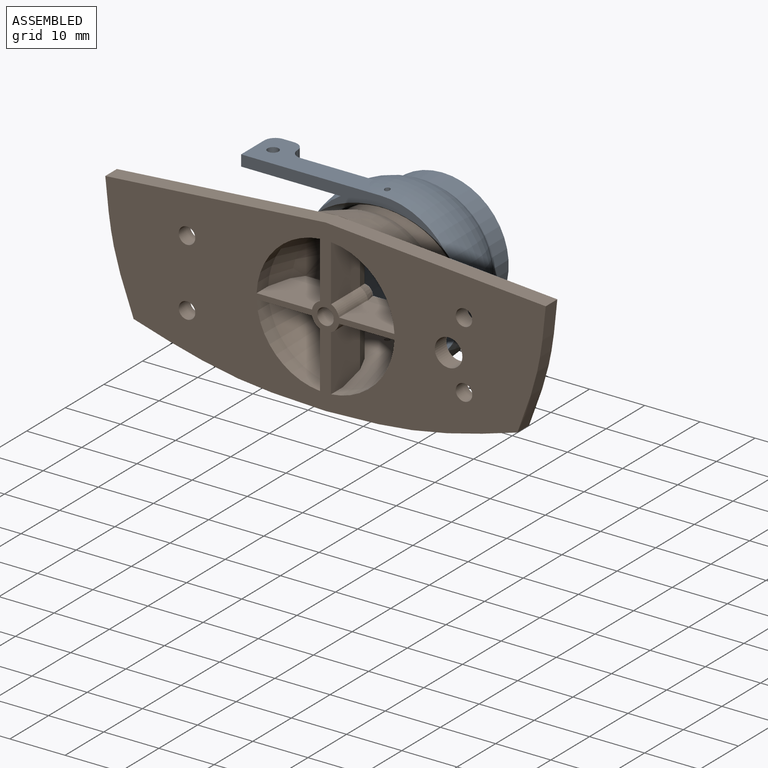
[diagram: assembled view]
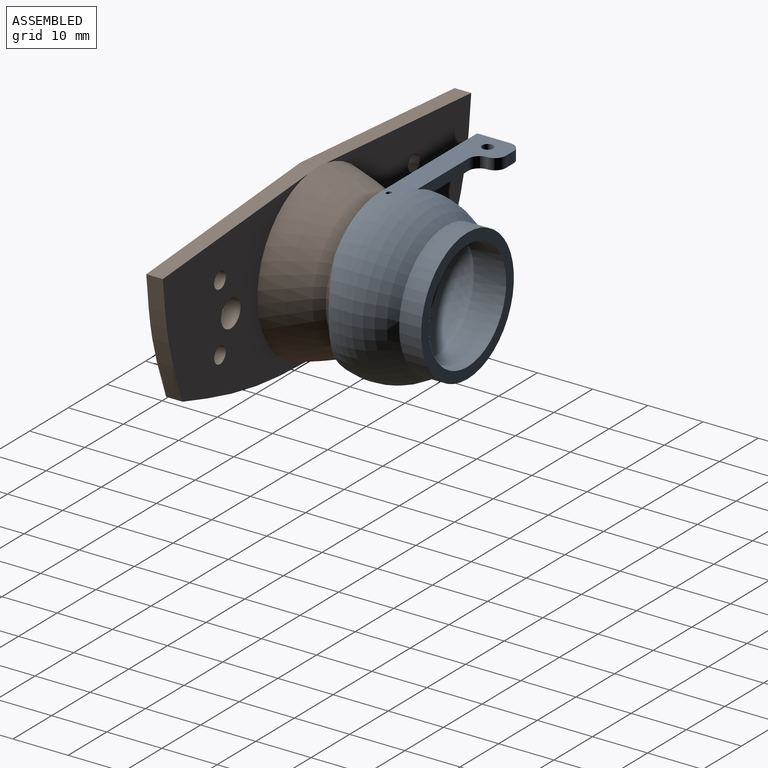
[diagram: assembled view, second angle]
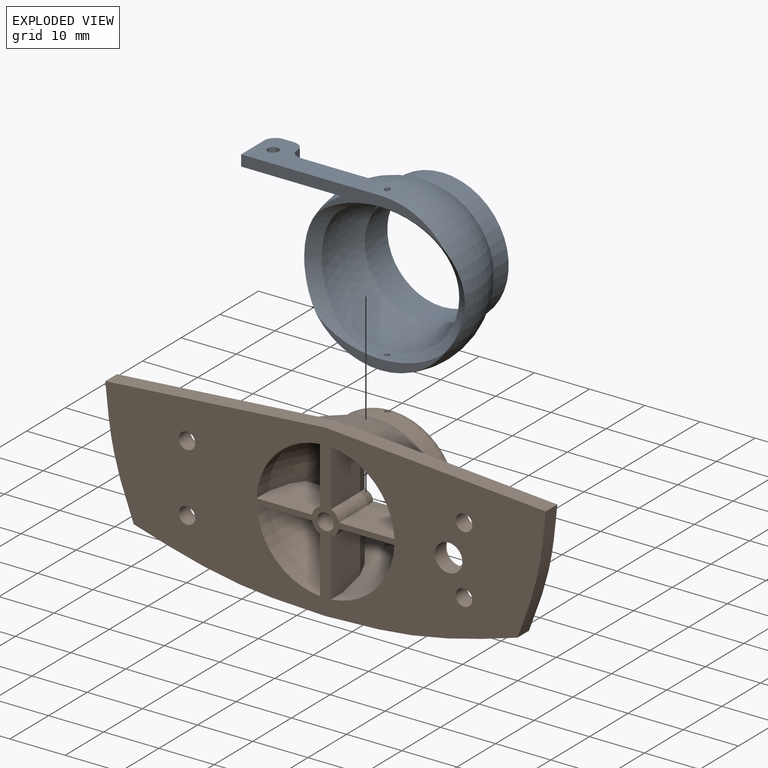
[diagram: exploded view]
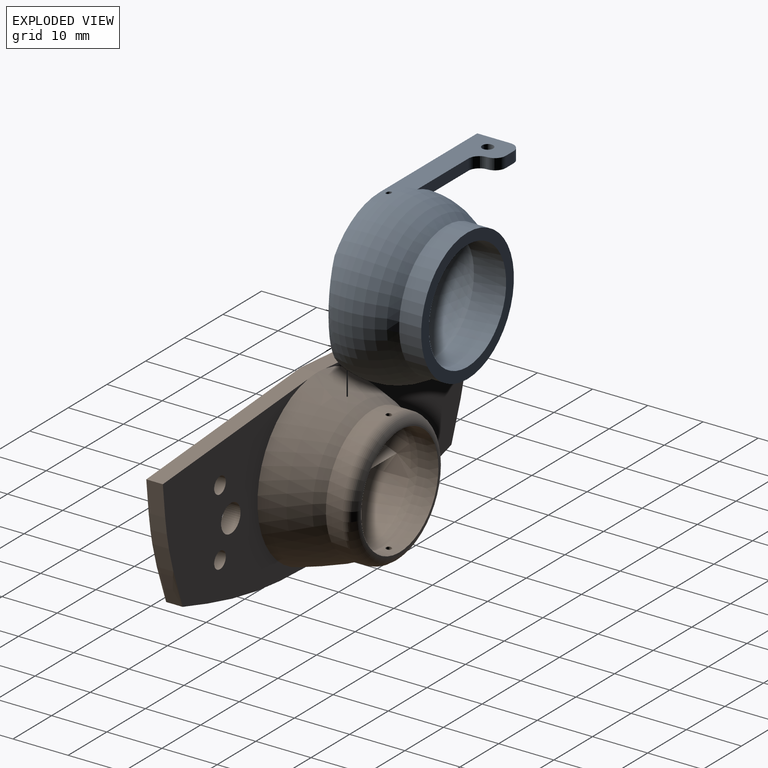
[diagram: exploded view, second angle]
ASSEMBLY  parts=2 mates=2
PART A: 19 faces, bbox 39.9x19.1x29.6 mm
  f0: plane 23.22x5.95mm, normal (0,-1,0), area 30.2mm2, adj f5,f9
  f1: sphere r=12.46mm, area 681.8mm2, adj f2,f7,f8,f9
  f2: cylinder r=10mm len=20mm, axis (0,-1,0), area 366.5mm2, adj f1,f3
  f3: plane 24x24mm, normal (0,1,0), area 138.2mm2, adj f2,f4
  f4: cylinder r=12mm len=24mm, axis (0,-1,0), area 301.6mm2, adj f3,f5
  f5: torus R=1.87mm, axis (0,-1,0), area 1080.7mm2, adj f0,f4,f6,f7,f8,f9,f10,f12
  f6: plane 36.92x5.95mm, normal (0,-1,0), area 71mm2, adj f5,f9,f10,f11,f13
  f7: cylinder r=0.5mm len=2.4mm, axis (0,0,1), area 7.2mm2, adj f1,f5
  f8: cylinder r=0.5mm len=2.39mm, axis (0,0,1), area 7.1mm2, adj f1,f5
  f9: revolved ~29.12x24.98mm, area 146mm2, adj f0,f1,f5,f6
  f10: plane 18.02x8.01mm, normal (0,0,-1), area 89.1mm2, adj f5,f6,f11,f12,f14,f15,f16,f17
  f11: plane 6x2mm, normal (-1,0,0), area 12mm2, adj f6,f10,f13,f17
  f12: plane 13.23x2mm, normal (0,1,0), area 21.6mm2, adj f5,f10,f13,f14
  f13: plane 25.32x8mm, normal (0,0,1), area 108.2mm2, adj f5,f6,f11,f12,f14,f15,f16,f17
  f14: cylinder r=2mm len=2mm, axis (0,0,1), area 6.3mm2, adj f10,f12,f13,f15
  f15: cylinder r=2mm len=2mm, axis (0,0,1), area 6.3mm2, adj f10,f13,f14,f16
  f16: plane 2x2mm, normal (0,1,0), area 4mm2, adj f10,f13,f15,f17
  f17: cylinder r=2mm len=2mm, axis (0,0,1), area 6.3mm2, adj f10,f11,f13,f16
  f18: cylinder r=1mm len=2mm, axis (0,0,1), area 12.6mm2, adj f10,f13
PART B: 53 faces, bbox 80x31x18.1 mm
  f0: cylinder r=12.5mm len=11.96mm, axis (0,0,-1), area 54.4mm2, adj f3,f16,f31,f33
  f1: cylinder r=12.5mm len=11.96mm, axis (0,0,-1), area 54.4mm2, adj f3,f16,f34,f36
  f2: cylinder r=12.5mm len=11.96mm, axis (0,0,-1), area 54.4mm2, adj f3,f16,f37,f39
  f3: revolved ~25x25mm, area 888.8mm2, adj f0,f1,f2,f13,f18,f27,f28,f30
  f4: plane 39.91x3.06mm, normal (0.08,-1,0), area 120.1mm2, adj f5,f12,f15,f16,f22
  f5: extruded ~22.04x5.13mm, area 68.2mm2, adj f4,f6,f15,f16
  f6: extruded ~34.77x5.77mm, area 106.2mm2, adj f5,f7,f15,f16
  f7: extruded ~34.77x5.77mm, area 106.2mm2, adj f6,f8,f15,f16
  f8: extruded ~22.04x5.13mm, area 68.2mm2, adj f7,f12,f15,f16
  f9: cylinder r=1.5mm len=3mm, axis (0,0,-1), area 28.3mm2, adj f15,f16
  f10: cylinder r=1.5mm len=3mm, axis (0,0,-1), area 28.3mm2, adj f15,f16
  f11: cylinder r=1.5mm len=3mm, axis (0,0,-1), area 28.3mm2, adj f15,f16
  f12: plane 39.91x3.06mm, normal (-0.08,-1,0), area 120.1mm2, adj f4,f8,f15,f16,f17
  f13: cylinder r=12.5mm len=11.96mm, axis (0,0,-1), area 54.4mm2, adj f3,f16,f28,f30
  f14: cylinder r=1.5mm len=3mm, axis (0,0,-1), area 28.3mm2, adj f15,f16
  f15: plane 79.81x30.69mm, normal (0,0,1), area 1271.7mm2, adj f4,f5,f6,f7,f8,f9,f10,f11
  f16: plane 79.81x30.87mm, normal (0,0,-1), area 1600.3mm2, adj f0,f1,f2,f4,f5,f6,f7,f8
  f17: plane 2.35x0.18mm, normal (0,0,-1), area 0.1mm2, adj f12,f21
  f18: revolved ~19.98x19.98mm, area 169.9mm2, adj f3,f19,f23,f24
  f19: revolved ~19.98x19.98mm, area 140.8mm2, adj f18,f23,f24,f25
  f20: cylinder r=12mm len=24mm, axis (0,0,-1), area 225.4mm2, adj f21,f23,f24,f25
  f21: revolved ~30.84x30.84mm, area 921.6mm2, adj f15,f17,f20,f22
  f22: plane 2.35x0.18mm, normal (0,0,-1), area 0.1mm2, adj f4,f21
  f23: cylinder r=0.5mm len=2.13mm, axis (0,-1,0), area 6.6mm2, adj f18,f19,f20,f25
  f24: cylinder r=0.5mm len=2.13mm, axis (0,-1,0), area 6.7mm2, adj f18,f19,f20,f25
  f25: torus R=10mm, axis (0,0,-1), area 221.7mm2, adj f19,f20,f23,f24
  f26: cylinder r=2.5mm len=5mm, axis (0,0,1), area 47.1mm2, adj f15,f16
  f27: plane 21.31x3.18mm, normal (0,0,1), area 4.1mm2, adj f3,f40,f41,f42,f43,f44,f45,f46
  f28: plane 10.04x7.17mm, normal (0,1,0), area 69.7mm2, adj f3,f13,f16,f29,f51
  f29: cylinder r=2.5mm len=7.5mm, axis (0,0,-1), area 18mm2, adj f16,f28,f30,f48,f51
  f30: plane 10.17x7.5mm, normal (-1,0,0), area 73.7mm2, adj f3,f13,f16,f29,f47
  f31: plane 10.17x7.5mm, normal (1,0,0), area 73.7mm2, adj f0,f3,f16,f32,f45
  f32: cylinder r=2.5mm len=7.5mm, axis (0,0,-1), area 18mm2, adj f16,f31,f33,f46,f50
  f33: plane 10.04x7.16mm, normal (0,1,0), area 69.7mm2, adj f0,f3,f16,f32,f50
  f34: plane 10.04x7.16mm, normal (0,-1,0), area 69.7mm2, adj f1,f3,f16,f35,f49
  f35: cylinder r=2.5mm len=7.5mm, axis (0,0,-1), area 18mm2, adj f16,f34,f36,f44,f49
  f36: plane 10.17x7.5mm, normal (1,0,0), area 73.7mm2, adj f1,f3,f16,f35,f43
  f37: plane 10.17x7.5mm, normal (-1,0,0), area 73.7mm2, adj f2,f3,f16,f38,f41
  f38: cylinder r=2.5mm len=7.5mm, axis (0,0,-1), area 18mm2, adj f16,f37,f39,f42,f52
  f39: plane 10.04x7.17mm, normal (0,-1,0), area 69.7mm2, adj f2,f3,f16,f38,f52
  f40: cylinder r=1.5mm len=10mm, axis (0,0,-1), area 94.2mm2, adj f16,f27
  f41: plane 9.83x2.64mm, normal (-0.94,0,0.34), area 24mm2, adj f3,f27,f37,f42
  f42: cone r=2.5mm half-angle=20deg, axis (0,0,-1), area 6.7mm2, adj f27,f38,f41,f52
  f43: plane 9.83x2.64mm, normal (0.94,0,0.34), area 24mm2, adj f3,f27,f36,f44
  f44: cone r=2.5mm half-angle=20deg, axis (0,0,-1), area 6.7mm2, adj f27,f35,f43,f49
  f45: plane 9.83x2.64mm, normal (0.94,0,0.34), area 24mm2, adj f3,f27,f31,f46
  f46: cone r=2.5mm half-angle=20deg, axis (0,0,-1), area 6.7mm2, adj f27,f32,f45,f50
  f47: plane 9.83x2.64mm, normal (-0.94,0,0.34), area 24mm2, adj f3,f27,f30,f48
  f48: cone r=2.5mm half-angle=20deg, axis (0,0,-1), area 6.7mm2, adj f27,f29,f47,f51
  f49: plane 9.96x2.98mm, normal (0,-0.98,0.17), area 25.8mm2, adj f3,f34,f35,f44,f50
  f50: plane 9.96x2.98mm, normal (0,0.98,0.17), area 25.8mm2, adj f3,f32,f33,f46,f49
  f51: plane 9.96x2.98mm, normal (0,0.98,0.17), area 25.8mm2, adj f3,f28,f29,f48,f52
  f52: plane 9.96x2.98mm, normal (0,-0.98,0.17), area 25.8mm2, adj f3,f38,f39,f42,f51
PLACE A at identity
PLACE B rot(axis=(-1,0,0),90deg) t=(-15.49,-10.19,0.33)mm
MATE cylindrical B.f23 <-> A.f7  axis (0,0,1) through (5.31,5.81,11.97)mm
MATE revolute B.f23 <-> A.f7  axis (0,0,1) through (5.31,5.81,-12.06)mm
